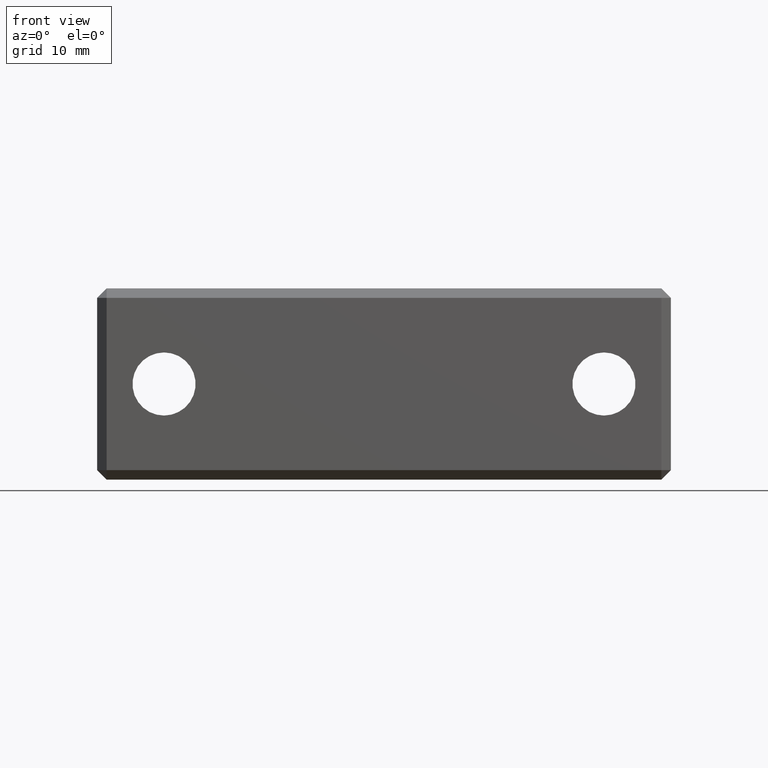
[diagram: clean part render]
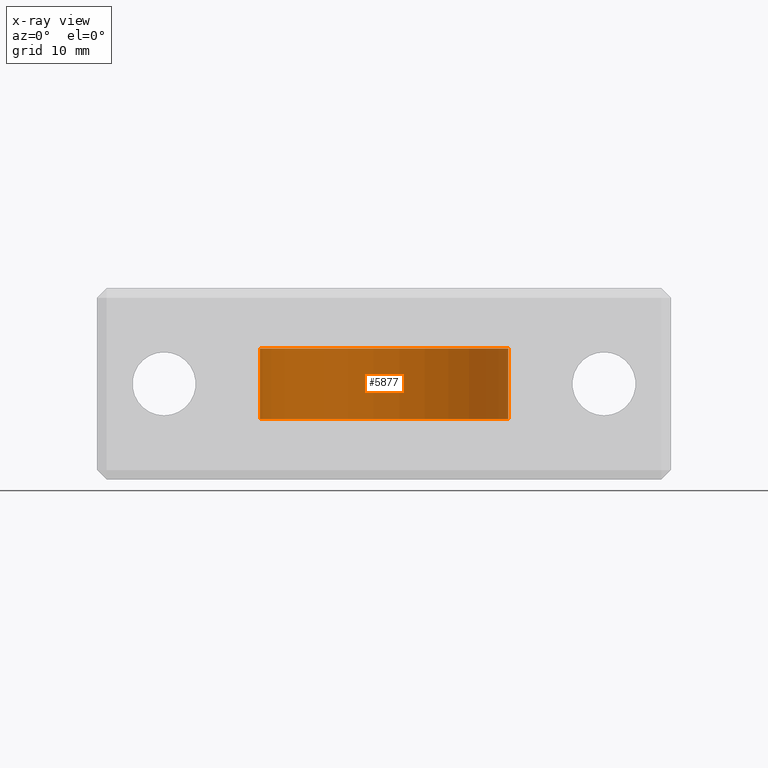
[diagram: x-ray — body ghosted, one internal face saturated and labeled with its STEP entity id]
A machine part, front view, then the same camera in x-ray: the body is ghosted and one INTERNAL B-rep face — a face not visible from any outside direction — is saturated and labeled: STEP entity #5877.
In plain terms, the highlighted cylindrical surface (partial cylindrical patch) has radius 13 mm, axis along (-0, 0, 1).
Its self-contained STEP definition (entity closure, byte-faithful):
#3946 = CARTESIAN_POINT ( 'NONE',  ( -12.99752393339566200, 25.25371559038931600, -3.699999999999999700 ) ) ;
#3947 = CARTESIAN_POINT ( 'NONE',  ( 12.99752393339568900, 24.74628440961067700, -3.699999999999998400 ) ) ;
#3955 = CARTESIAN_POINT ( 'NONE',  ( -12.99752393339566200, 25.25371559038931600, 3.700000000000006000 ) ) ;
#3969 = CARTESIAN_POINT ( 'NONE',  ( 12.99752393339568900, 24.74628440961067700, 3.700000000000006800 ) ) ;
#3980 = DIRECTION ( 'NONE',  ( -0.9998095333381289400, 0.01951658387610145600, -6.672013369141566700E-017 ) ) ;
#3981 = DIRECTION ( 'NONE',  ( 2.775557561562890700E-017, 0.0000000000000000000, -1.000000000000000000 ) ) ;
#3982 = CARTESIAN_POINT ( 'NONE',  ( 1.395972093787768600E-014, 24.99999999999999300, 3.700000000000006400 ) ) ;
#3983 = AXIS2_PLACEMENT_3D ( 'NONE', #3982, #3981, #3980 ) ;
#3984 = CIRCLE ( 'NONE', #3983, 12.99999999999999800 ) ;
#4014 = DIRECTION ( 'NONE',  ( 0.9998095333381289400, -0.01951658387610145600, 0.0000000000000000000 ) ) ;
#4015 = DIRECTION ( 'NONE',  ( -2.775557561562890700E-017, 0.0000000000000000000, 1.000000000000000000 ) ) ;
#4016 = CARTESIAN_POINT ( 'NONE',  ( 1.351896195158664200E-014, 24.99999999999999300, 19.58001605136437100 ) ) ;
#4017 = AXIS2_PLACEMENT_3D ( 'NONE', #4016, #4015, #4014 ) ;
#4021 = CYLINDRICAL_SURFACE ( 'NONE', #4017, 12.99999999999999800 ) ;
#4022 = FACE_OUTER_BOUND ( 'NONE', #6058, .T. ) ;
#4029 = DIRECTION ( 'NONE',  ( 0.9998095333381289400, -0.01951658387610145600, 6.672013369141566700E-017 ) ) ;
#4030 = DIRECTION ( 'NONE',  ( -2.775557561562890700E-017, 0.0000000000000000000, 1.000000000000000000 ) ) ;
#4031 = CARTESIAN_POINT ( 'NONE',  ( 1.416511219743334200E-014, 24.99999999999999300, -3.699999999999999300 ) ) ;
#4032 = AXIS2_PLACEMENT_3D ( 'NONE', #4031, #4030, #4029 ) ;
#4033 = CIRCLE ( 'NONE', #4032, 12.99999999999999800 ) ;
#4034 = DIRECTION ( 'NONE',  ( -2.775557561562890700E-017, 0.0000000000000000000, 1.000000000000000000 ) ) ;
#4035 = VECTOR ( 'NONE', #4034, 1000.000000000000000 ) ;
#4036 = CARTESIAN_POINT ( 'NONE',  ( -12.99752393339566200, 25.25371559038931600, 19.58001605136437100 ) ) ;
#4037 = LINE ( 'NONE', #4036, #4035 ) ;
#4038 = DIRECTION ( 'NONE',  ( -2.775557561562890700E-017, 0.0000000000000000000, 1.000000000000000000 ) ) ;
#4039 = VECTOR ( 'NONE', #4038, 1000.000000000000000 ) ;
#4040 = CARTESIAN_POINT ( 'NONE',  ( 12.99752393339568900, 24.74628440961067700, 19.58001605136437100 ) ) ;
#4041 = LINE ( 'NONE', #4040, #4039 ) ;
#5838 = VERTEX_POINT ( 'NONE', #3969 ) ;
#5848 = VERTEX_POINT ( 'NONE', #3955 ) ;
#5852 = VERTEX_POINT ( 'NONE', #3947 ) ;
#5854 = VERTEX_POINT ( 'NONE', #3946 ) ;
#5867 = EDGE_CURVE ( 'NONE', #5848, #5838, #3984, .T. ) ;
#5870 = EDGE_CURVE ( 'NONE', #5852, #5838, #4041, .T. ) ;
#5871 = EDGE_CURVE ( 'NONE', #5854, #5848, #4037, .T. ) ;
#5872 = ORIENTED_EDGE ( 'NONE', *, *, #5867, .T. ) ;
#5873 = ORIENTED_EDGE ( 'NONE', *, *, #5870, .F. ) ;
#5874 = EDGE_CURVE ( 'NONE', #5852, #5854, #4033, .T. ) ;
#5877 = ADVANCED_FACE ( 'NONE', ( #4022 ), #4021, .T. ) ;
#6058 = EDGE_LOOP ( 'NONE', ( #6063, #6065, #5872, #5873 ) ) ;
#6063 = ORIENTED_EDGE ( 'NONE', *, *, #5874, .T. ) ;
#6065 = ORIENTED_EDGE ( 'NONE', *, *, #5871, .T. ) ;